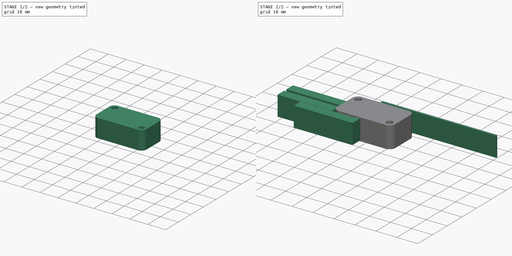
[diagram: build sequence overview — one tinted view per stage of 2, left to right]
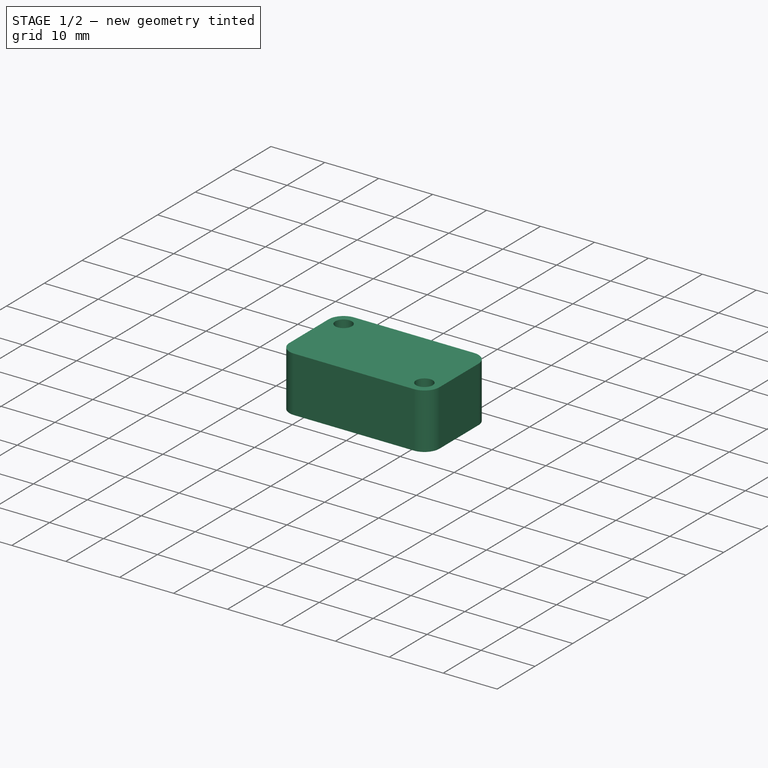
[diagram: stage 1 of 2 — iso view after this stage's code; geometry added in this stage tinted green]
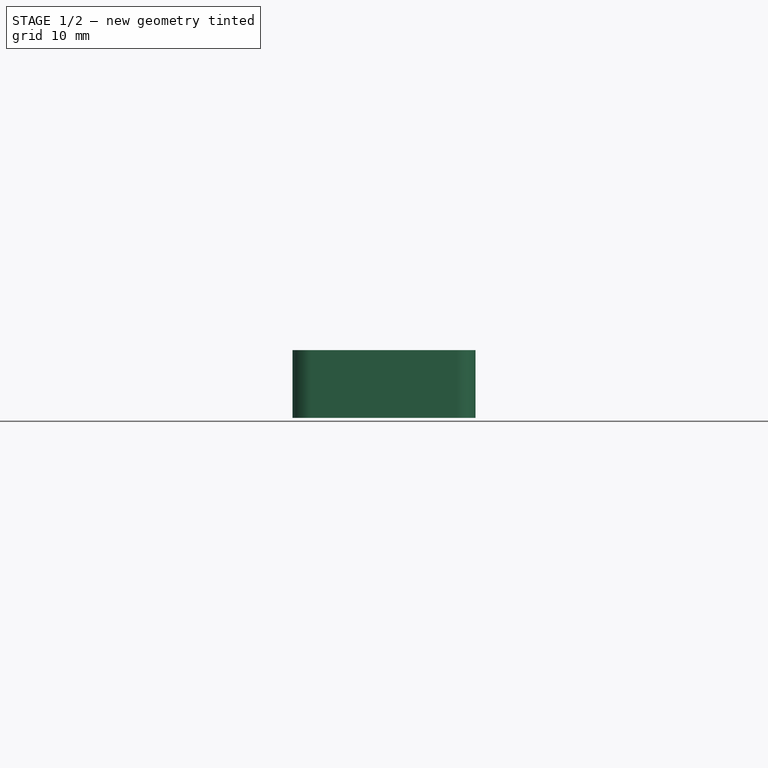
[diagram: stage 1 of 2 — front view after this stage's code; geometry added in this stage tinted green]
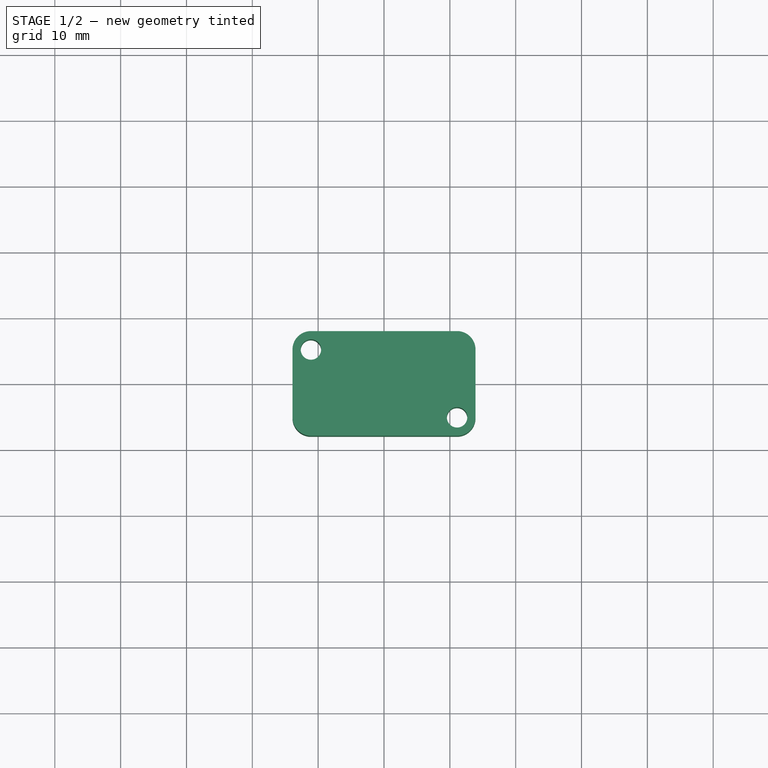
[diagram: stage 1 of 2 — top view after this stage's code; geometry added in this stage tinted green]
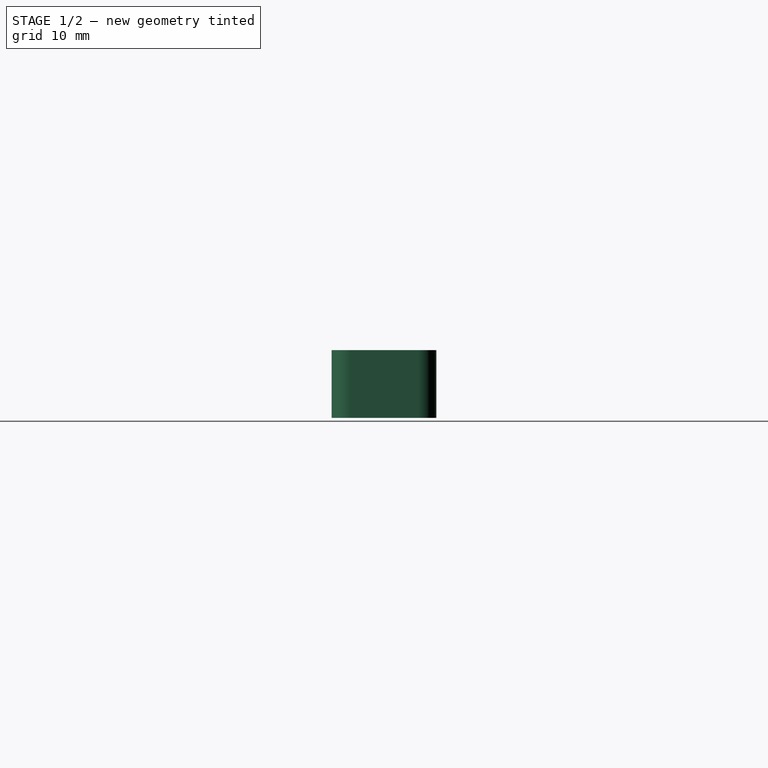
[diagram: stage 1 of 2 — right view after this stage's code; geometry added in this stage tinted green]
FCSTD DOCUMENT  (FreeCAD 0.19R24366 (Git))
Label: Microswitch mock up
License: All rights reserved
LicenseURL: http://en.wikipedia.org/wiki/All_rights_reserved
objects: Sketcher::SketchObject×2, PartDesign::Pad×2, PartDesign::Body×1
note: 7 computed .brp shape members not serialized (recipe doc carries the construction recipe); baked Part::Feature solids carry a one-line shape summary decoded from their .brp

FEATURE [Sketcher::SketchObject] Sketch
  FullyConstrained = true
  MapMode = 5
  Support = -> [XY_Plane]
  sketch-geometry (10):
    g0: Circle CenterX=-11.1 CenterY=5.15 CenterZ=0 NormalX=0 NormalY=0 NormalZ=1 AngleXU=0 Radius=1.55
    g1: Circle CenterX=11.1 CenterY=-5.15 CenterZ=0 NormalX=0 NormalY=0 NormalZ=1 AngleXU=0 Radius=1.55
    g2: LineSegment StartX=-11.1 StartY=7.95 StartZ=0 EndX=11.1 EndY=7.95 EndZ=0
    g3: LineSegment StartX=13.9 StartY=5.15 StartZ=0 EndX=13.9 EndY=-5.15 EndZ=0
    g4: LineSegment StartX=-13.9 StartY=5.15 StartZ=0 EndX=-13.9 EndY=-5.15 EndZ=0
    g5: LineSegment StartX=-11.1 StartY=-7.95 StartZ=0 EndX=11.1 EndY=-7.95 EndZ=0
    g6: ArcOfCircle CenterX=-11.1 CenterY=5.15 CenterZ=0 NormalX=0 NormalY=0 NormalZ=1 AngleXU=0 Radius=2.8 StartAngle=1.5708 EndAngle=3.14159
    g7: ArcOfCircle CenterX=-11.1 CenterY=-5.15 CenterZ=0 NormalX=0 NormalY=0 NormalZ=1 AngleXU=0 Radius=2.8 StartAngle=3.14159 EndAngle=4.71239
    g8: ArcOfCircle CenterX=11.1 CenterY=-5.15 CenterZ=0 NormalX=0 NormalY=0 NormalZ=1 AngleXU=0 Radius=2.8 StartAngle=4.71239 EndAngle=6.28319
    g9: ArcOfCircle CenterX=11.1 CenterY=5.15 CenterZ=0 NormalX=0 NormalY=0 NormalZ=1 AngleXU=0 Radius=2.8 StartAngle=0 EndAngle=1.5708
  constraints (24):
    c: DistanceX(g0,g1) = 22.2
    c: Equal(g1,g0)
    c: Horizontal(g2)
    c: Vertical(g3)
    c: Vertical(g4)
    c: Horizontal(g5)
    c: Tangent(g2,g6) = 1.5708
    c: Tangent(g4,g6) = -1.5708
    c: Tangent(g4,g7) = -1.5708
    c: Tangent(g5,g7) = -1.5708
    c: Tangent(g3,g8) = 1.5708
    c: Tangent(g5,g8) = -1.5708
    c: Tangent(g2,g9) = 1.5708
    c: Tangent(g3,g9) = 1.5708
    c: Equal(g9,g8)
    c: Radius(g6) = 2.8
    c: DistanceX(g1,g3) = 2.8
    c: DistanceX(g4,g3) = 27.8
    c: Symmetric(g2,g5,g-1)
    c: Symmetric(g4,g3,g-2)
    c: DistanceY(g0,g2) = 2.8
    c: DistanceY(g1,g0) = 10.3
    c: Diameter(g1) = 3.1
    c: DistanceY(g5,g2) = 15.9
FEATURE [PartDesign::Pad] Pad
  Direction = (1,1,1)
  Length = 10.3
  Length2 = 100
  Midplane = true
  Profile = -> Sketch
  Type = 0
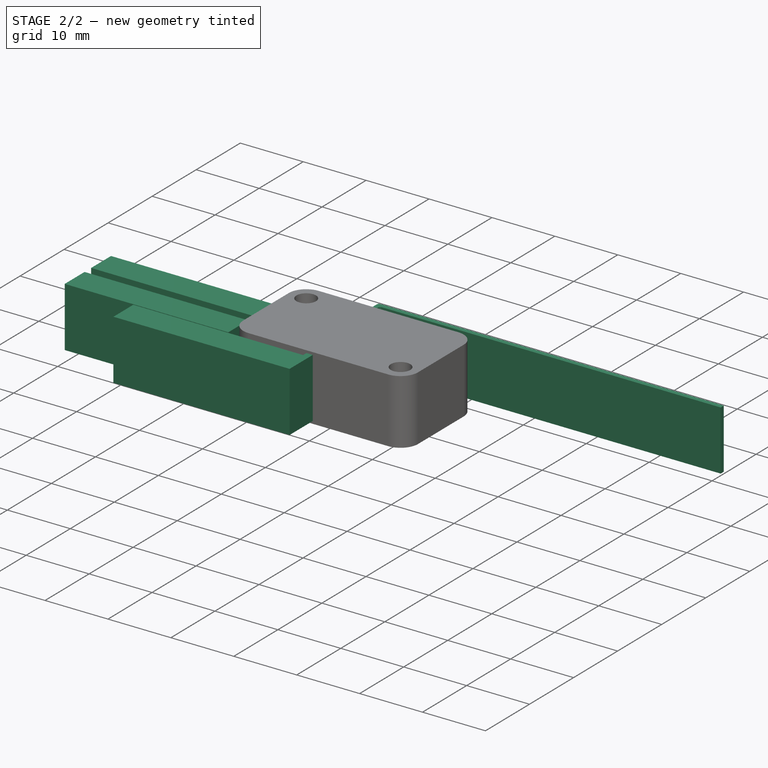
[diagram: stage 2 of 2 — iso view after this stage's code; geometry added in this stage tinted green]
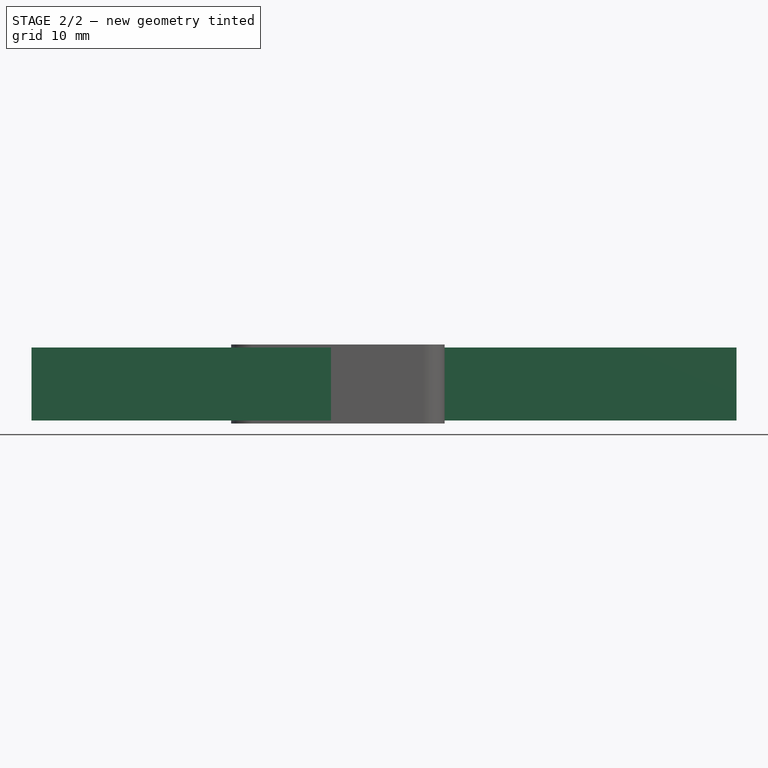
[diagram: stage 2 of 2 — front view after this stage's code; geometry added in this stage tinted green]
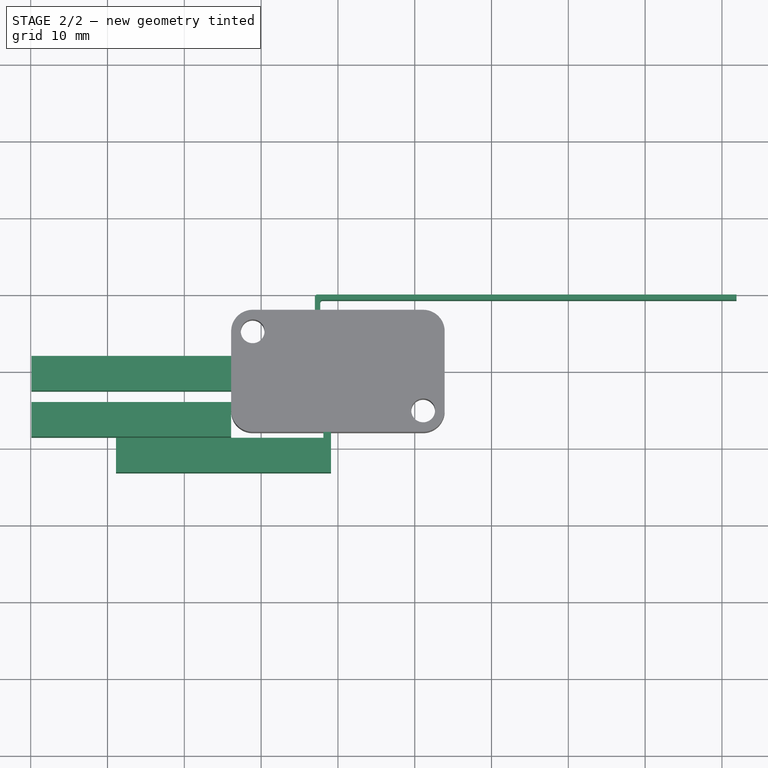
[diagram: stage 2 of 2 — top view after this stage's code; geometry added in this stage tinted green]
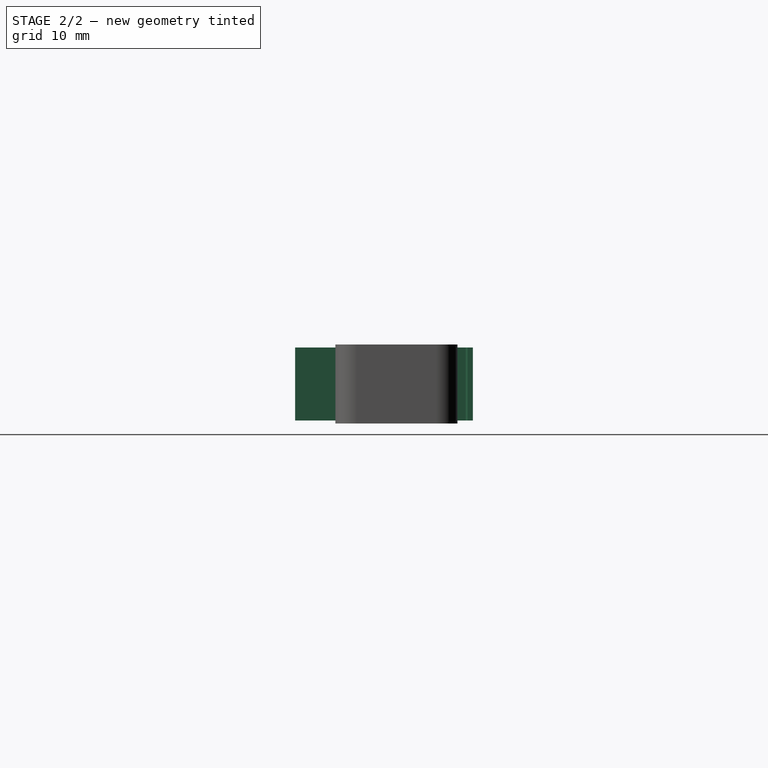
[diagram: stage 2 of 2 — right view after this stage's code; geometry added in this stage tinted green]
FEATURE [Sketcher::SketchObject] Sketch001
  ExternalGeometry = -> [Pad]
  FullyConstrained = true
  MapMode = 5
  Support = -> [XY_Plane]
  sketch-geometry (25):
    g0: LineSegment StartX=-2 StartY=9.25 StartZ=0 EndX=51.9 EndY=9.25 EndZ=0
    g1: LineSegment StartX=51.9 StartY=9.25 StartZ=0 EndX=51.9 EndY=9.95 EndZ=0
    g2: LineSegment StartX=51.9 StartY=9.95 StartZ=0 EndX=-2.7 EndY=9.95 EndZ=0
    g3: LineSegment StartX=-3 StartY=9.65 StartZ=0 EndX=-3 EndY=7.95 EndZ=0
    g4: LineSegment StartX=-2.3 StartY=8.95 StartZ=0 EndX=-2.3 EndY=7.95 EndZ=0
    g5: LineSegment StartX=-3 StartY=7.95 StartZ=0 EndX=-2.3 EndY=7.95 EndZ=0
    g6: ArcOfCircle CenterX=-2.7 CenterY=9.65 CenterZ=0 NormalX=0 NormalY=0 NormalZ=1 AngleXU=0 Radius=0.3 StartAngle=1.5708 EndAngle=3.14159
    g7: ArcOfCircle CenterX=-2 CenterY=8.95 CenterZ=0 NormalX=0 NormalY=0 NormalZ=1 AngleXU=0 Radius=0.3 StartAngle=1.5708 EndAngle=3.14159
    g8: LineSegment StartX=-13.9 StartY=-2.55 StartZ=0 EndX=-39.9 EndY=-2.55 EndZ=0
    g9: LineSegment StartX=-39.9 StartY=-2.55 StartZ=0 EndX=-39.9 EndY=1.95 EndZ=0
    g10: LineSegment StartX=-39.9 StartY=1.95 StartZ=0 EndX=-13.9 EndY=1.95 EndZ=0
    g11: LineSegment StartX=-13.9 StartY=1.95 StartZ=0 EndX=-13.9 EndY=-2.55 EndZ=0
    g12: LineSegment StartX=-13.9 StartY=-8.55 StartZ=0 EndX=-39.9 EndY=-8.55 EndZ=0
    g13: LineSegment StartX=-39.9 StartY=-8.55 StartZ=0 EndX=-39.9 EndY=-4.05 EndZ=0
    g14: LineSegment StartX=-39.9 StartY=-4.05 StartZ=0 EndX=-13.9 EndY=-4.05 EndZ=0
    g15: LineSegment StartX=-13.9 StartY=-4.05 StartZ=0 EndX=-13.9 EndY=-8.55 EndZ=0
    g16: LineSegment StartX=-28.9 StartY=-8.7 StartZ=0 EndX=-1.9 EndY=-8.7 EndZ=0
    g17: LineSegment StartX=-1.9 StartY=-8.7 StartZ=0 EndX=-1.9 EndY=-7.95 EndZ=0
    g18: LineSegment StartX=-0.9 StartY=-7.95 StartZ=0 EndX=-0.9 EndY=-13.2 EndZ=0
    g19: LineSegment StartX=-0.9 StartY=-13.2 StartZ=0 EndX=-28.9 EndY=-13.2 EndZ=0
    g20: LineSegment StartX=-28.9 StartY=-8.7 StartZ=0 EndX=-28.9 EndY=-13.2 EndZ=0
    g21: LineSegment StartX=-1.9 StartY=-7.95 StartZ=0 EndX=-0.9 EndY=-7.95 EndZ=0
    g22: GeomPoint X=-28.9 Y=-10.95 Z=0
    g23: GeomPoint X=-39.9 Y=-0.3 Z=0
    g24: GeomPoint X=-39.9 Y=-6.3 Z=0
  constraints (67):
    c: Horizontal(g0)
    c: Coincident(g1,g0)
    c: Horizontal(g2)
    c: Vertical(g3)
    c: Coincident(g5,g3)
    c: Coincident(g5,g4)
    c: Horizontal(g5)
    c: Vertical(g4)
    c: Vertical(g1)
    c: Coincident(g1,g2)
    c: DistanceY(g1,g1) = 0.7
    c: Equal(g5,g1)
    c: Tangent(g2,g6) = -1.5708
    c: Tangent(g3,g6) = -1.5708
    c: Tangent(g0,g7) = 1.5708
    c: Tangent(g4,g7) = -1.5708
    c: Equal(g6,g7)
    c: DistanceX(g-4,g3) = 8.1
    c: PointOnObject(g3,g-3)
    c: DistanceX(g-4,g1) = 63
    c: Radius(g6) = 0.3
    c: DistanceY(g3,g2) = 2
    c: Coincident(g8,g9)
    c: Coincident(g9,g10)
    c: Coincident(g10,g11)
    c: Coincident(g11,g8)
    c: Horizontal(g8)
    c: Horizontal(g10)
    c: Vertical(g9)
    c: Vertical(g11)
    c: PointOnObject(g8,g-5)
    c: Coincident(g12,g13)
    c: Coincident(g13,g14)
    c: Coincident(g14,g15)
    c: Coincident(g15,g12)
    c: Horizontal(g12)
    c: Horizontal(g14)
    c: Vertical(g13)
    c: Vertical(g15)
    c: PointOnObject(g12,g-5)
    c: Equal(g9,g13)
    c: DistanceY(g9,g9) = 4.5
    c: Equal(g10,g14)
    c: DistanceX(g10,g10) = 26
    c: Horizontal(g16)
    c: Coincident(g17,g16)
    c: PointOnObject(g17,g-6)
    c: Vertical(g17)
    c: PointOnObject(g18,g-6)
    c: Vertical(g18)
    c: Coincident(g19,g18)
    c: Horizontal(g19)
    c: Coincident(g20,g16)
    c: Coincident(g20,g19)
    c: Coincident(g21,g17)
    c: Coincident(g21,g18)
    c: Vertical(g20)
    c: DistanceX(g19,g19) = 28
    c: Equal(g20,g9)
    c: Symmetric(g16,g19,g22)
    c: DistanceY(g22,g-6) = 3
    c: DistanceX(g16,g18) = 1
    c: Symmetric(g9,g8,g23)
    c: Symmetric(g12,g13,g24)
    c: DistanceY(g24,g23) = 6
    c: DistanceY(g9,g-3) = 6
    c: DistanceX(g-5,g16) = 12
FEATURE [PartDesign::Pad] Pad001
  BaseFeature = -> Pad
  Direction = (1,1,1)
  Length = 9.5
  Length2 = 100
  Midplane = true
  Profile = -> Sketch001
  Type = 0
FEATURE [PartDesign::Body] Body
  Group = -> [Sketch,Pad,Sketch001,Pad001]
  Origin = -> Origin
  Tip = -> Pad001
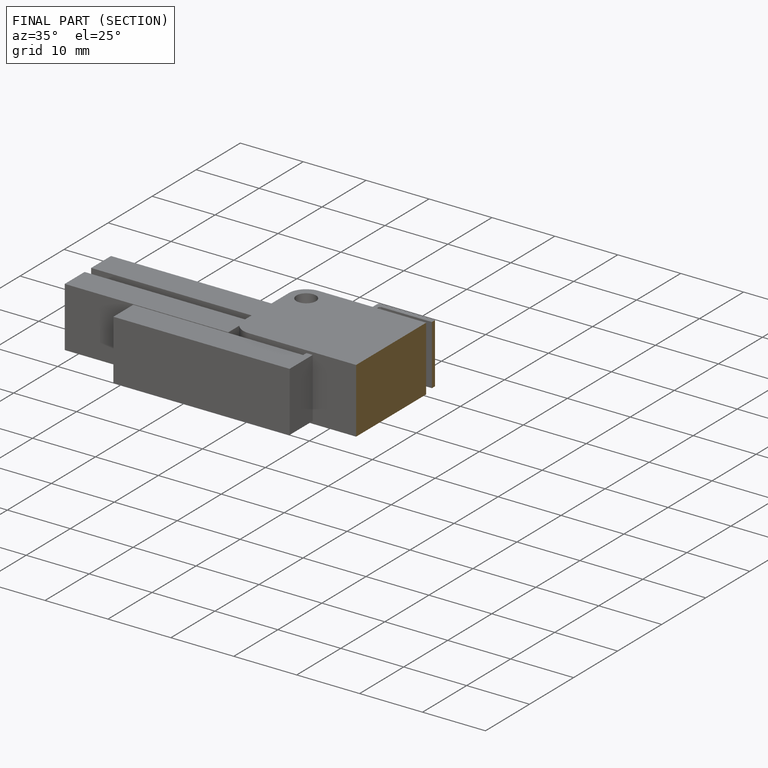
[diagram: finished part — half-section view (interior)]
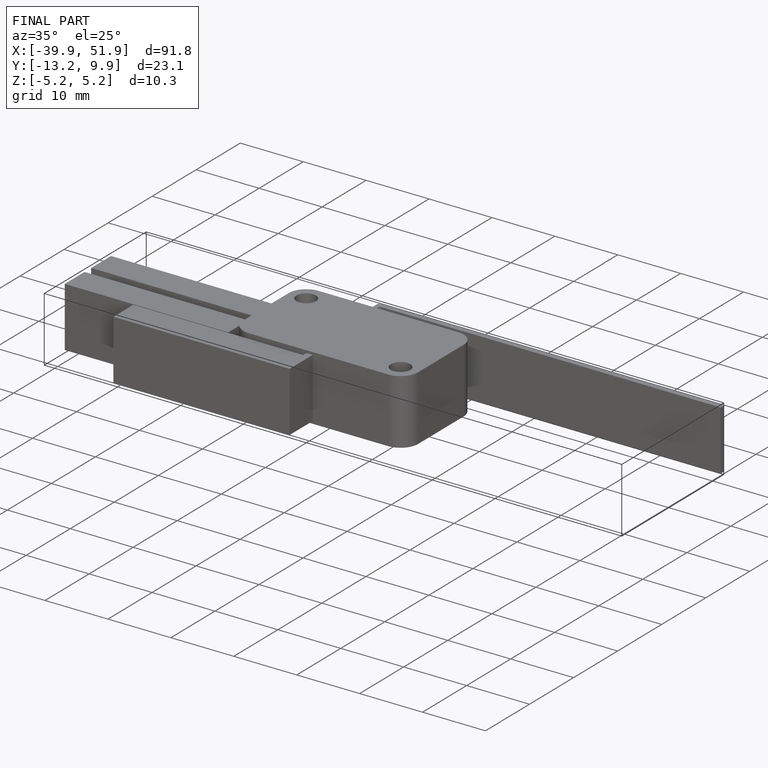
[diagram: finished part — iso view with bounding-box wireframe]
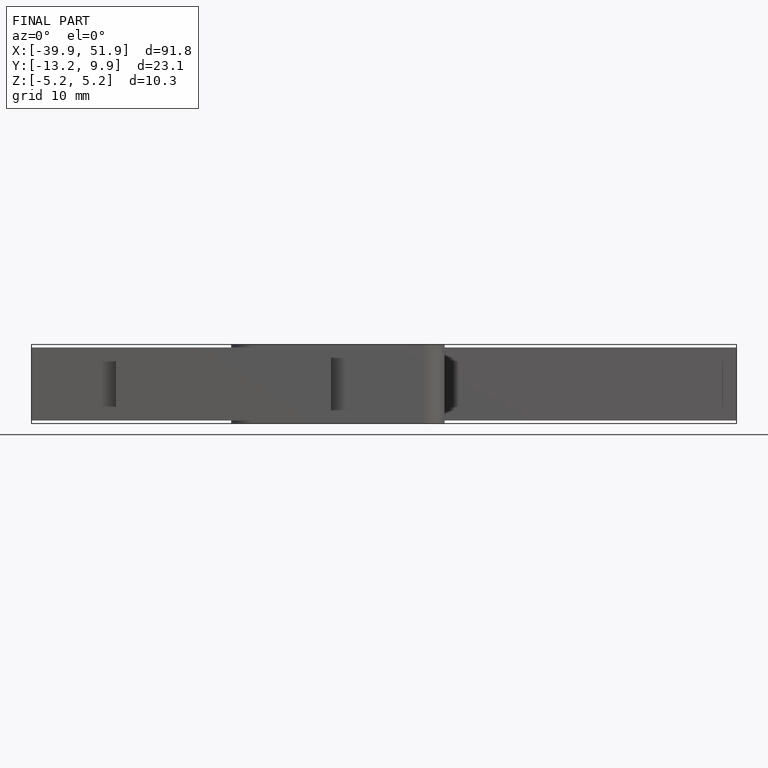
[diagram: finished part — front view with bounding-box wireframe]
